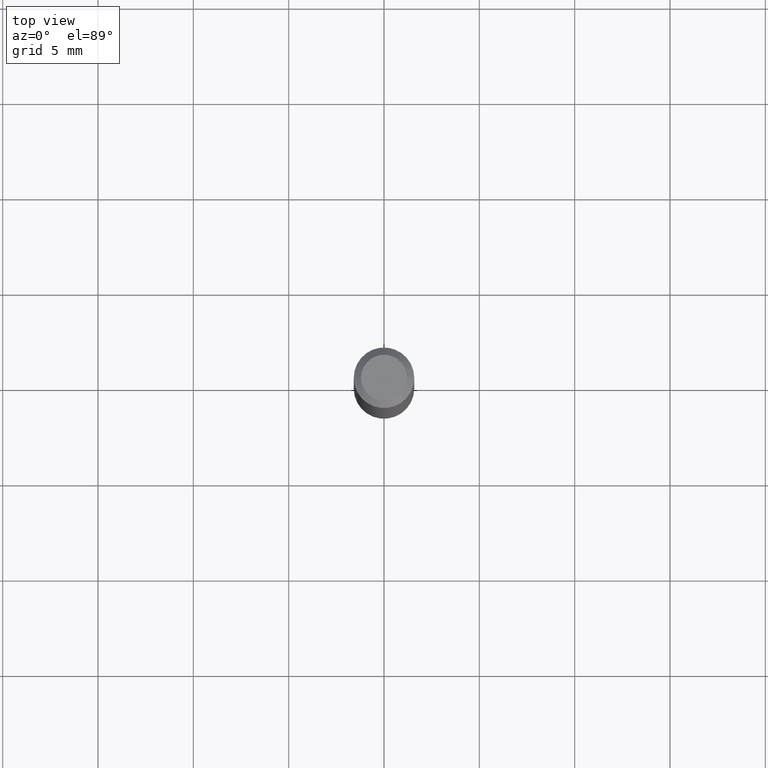
[diagram: clean part render]
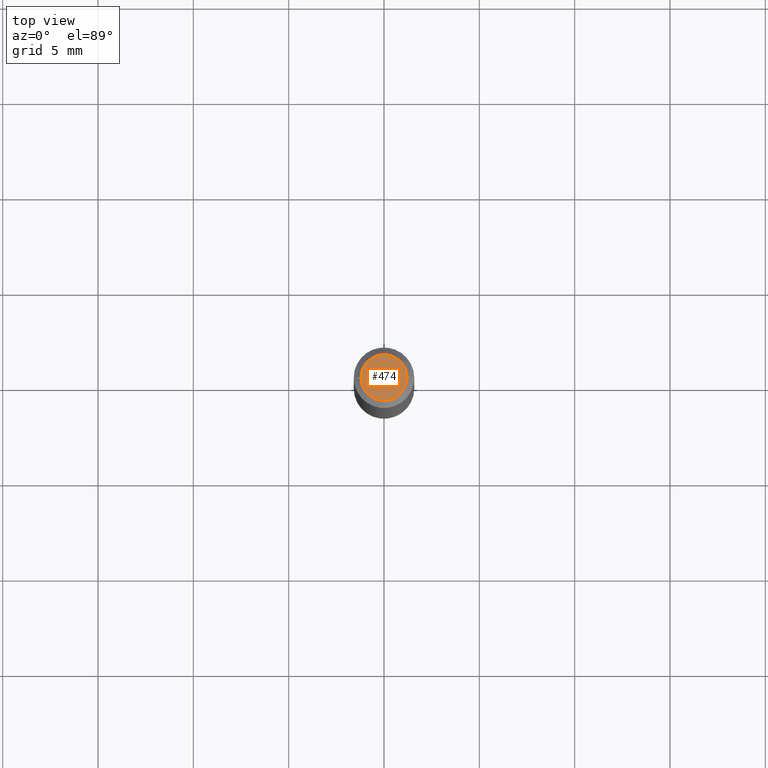
[diagram: same view with one face highlighted and labeled with its STEP entity id]
A machine part, top view. The second image highlights one B-rep face of the part: STEP entity #474.
In plain terms, the highlighted planar face has unit normal (0, -0, -1).
Its self-contained STEP definition (entity closure, byte-faithful):
#50 = AXIS2_PLACEMENT_3D ( 'NONE', #164, #299, #69 ) ;
#69 = DIRECTION ( 'NONE',  ( -1.000000000000000000, 6.982962677686265922E-15, -4.876176775795935793E-29 ) ) ;
#130 = EDGE_LOOP ( 'NONE', ( #261, #493 ) ) ;
#164 = CARTESIAN_POINT ( 'NONE',  ( 3.316907271900976589E-16, 0.04750000000000000749, -2.925296391183627249E-17 ) ) ;
#170 = EDGE_CURVE ( 'NONE', #319, #277, #423, .T. ) ;
#189 = DIRECTION ( 'NONE',  ( -2.445468806185136597E-29, 3.491481338843145583E-15, 1.000000000000000000 ) ) ;
#238 = CARTESIAN_POINT ( 'NONE',  ( 0.04750000000000000749, -4.035134999187568762E-16, 2.731847993664288856E-16 ) ) ;
#239 = CARTESIAN_POINT ( 'NONE',  ( -6.680649051745406845E-45, 9.538196290434862081E-31, 2.731847993664263218E-16 ) ) ;
#261 = ORIENTED_EDGE ( 'NONE', *, *, #280, .T. ) ;
#262 = AXIS2_PLACEMENT_3D ( 'NONE', #321, #189, #486 ) ;
#270 = CARTESIAN_POINT ( 'NONE',  ( -0.04750000000000000749, 3.578768372314221353E-16, 2.731847993664239060E-16 ) ) ;
#277 = VERTEX_POINT ( 'NONE', #270 ) ;
#280 = EDGE_CURVE ( 'NONE', #277, #319, #506, .T. ) ;
#299 = DIRECTION ( 'NONE',  ( 2.438088387897960049E-29, -3.491481338843145188E-15, -1.000000000000000000 ) ) ;
#300 = FACE_OUTER_BOUND ( 'NONE', #130, .T. ) ;
#319 = VERTEX_POINT ( 'NONE', #238 ) ;
#321 = CARTESIAN_POINT ( 'NONE',  ( -6.680649051745406845E-45, 9.538196290434862081E-31, 2.731847993664263218E-16 ) ) ;
#340 = AXIS2_PLACEMENT_3D ( 'NONE', #239, #413, #500 ) ;
#413 = DIRECTION ( 'NONE',  ( -2.445468806185136597E-29, 3.491481338843145583E-15, 1.000000000000000000 ) ) ;
#418 = PLANE ( 'NONE',  #50 ) ;
#423 = CIRCLE ( 'NONE', #340, 0.04750000000000000749 ) ;
#474 = ADVANCED_FACE ( 'NONE', ( #300 ), #418, .F. ) ;
#486 = DIRECTION ( 'NONE',  ( 1.000000000000000000, -6.982962677686266711E-15, 4.852736867747365086E-29 ) ) ;
#493 = ORIENTED_EDGE ( 'NONE', *, *, #170, .T. ) ;
#500 = DIRECTION ( 'NONE',  ( 1.000000000000000000, -6.982962677686266711E-15, 4.852736867747365086E-29 ) ) ;
#506 = CIRCLE ( 'NONE', #262, 0.04750000000000000749 ) ;